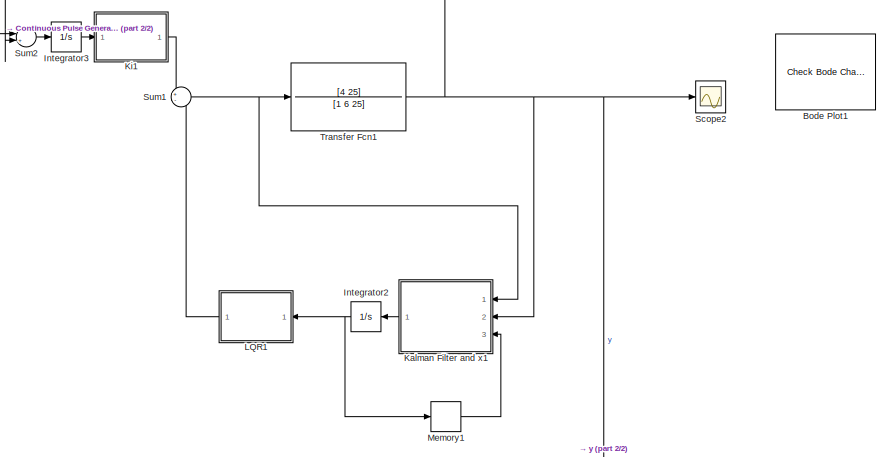
[diagram: root canvas - part 1/2, top center region]
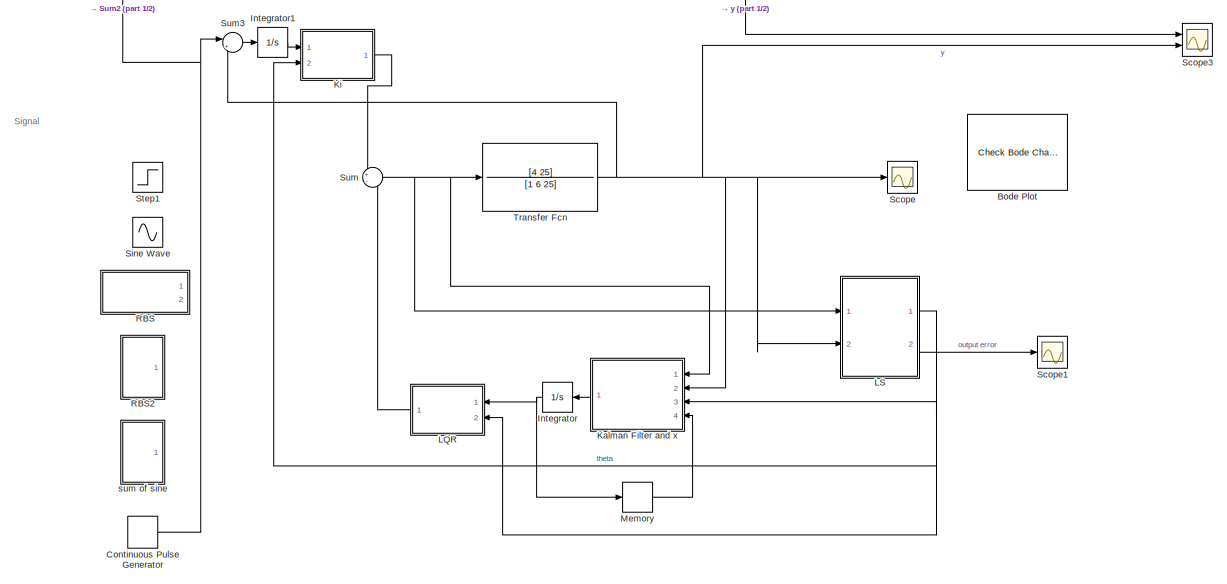
[diagram: root canvas - part 2/2, full width, bottom band]
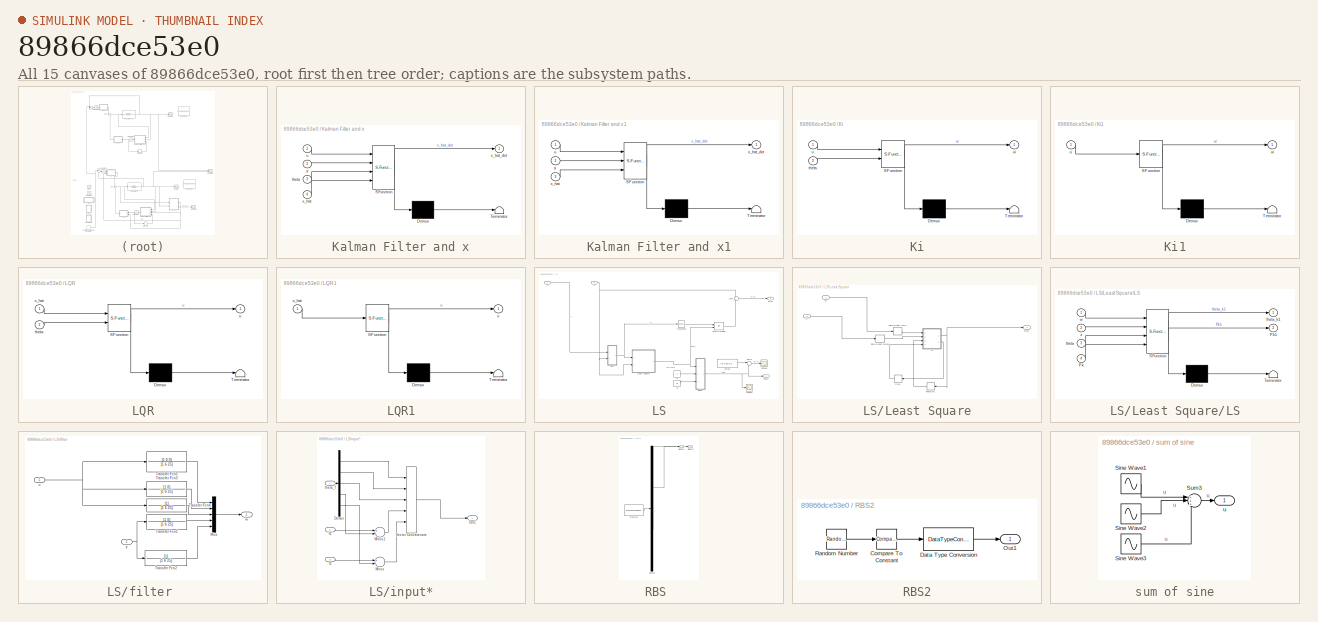
[diagram: thumbnail index - all 15 canvases of the model, root first then tree order]
MODEL slx_89866dce53e0
KIND model
CONFIG AbsTol = auto
CONFIG EnableMultiTasking = off
CONFIG FixedStep = auto
CONFIG MaxStep = auto
CONFIG MinStep = auto
CONFIG RelTol = 1e-3
CONFIG SampleTimeConstraint = Unconstrained
CONFIG Solver = VariableStepAuto
CONFIG SolverName = VariableStepAuto
CONFIG StartTime = 0.0
CONFIG StopTime = 50.0
BLOCK [Reference] Bode Plot  REF=slctrlblks/Model Verification/Check Bode 
Characteristics
  InstantiateOnLoad = on
  Ports = []
  SourceBlock = slctrlblks/Model Verification/Check Bode \nCharacteristics
  SourceProductBaseCode = SD
  SourceProductName = Simulink Control Design
  SourceType = Checks_Bode
BLOCK [Reference] Bode Plot1  REF=slctrlblks/Model Verification/Check Bode 
Characteristics
  InstantiateOnLoad = on
  Ports = []
  SourceBlock = slctrlblks/Model Verification/Check Bode \nCharacteristics
  SourceProductBaseCode = SD
  SourceProductName = Simulink Control Design
  SourceType = Checks_Bode
BLOCK [DiscretePulseGenerator] Continuous Pulse Generator
  Period = 1
  Ports = [0, 1]
  PulseType = Time based
  PulseWidth = 50
BLOCK [Integrator] Integrator
  Ports = [1, 1]
BLOCK [Integrator] Integrator1
  Ports = [1, 1]
BLOCK [Integrator] Integrator2
  Ports = [1, 1]
BLOCK [Integrator] Integrator3
  Ports = [1, 1]
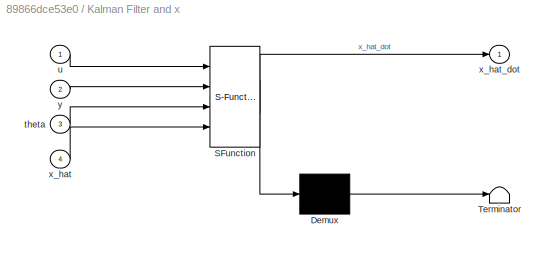
BLOCK [SubSystem] Kalman Filter and x
  ErrorFcn = Stateflow.Translate.translate
  PermitHierarchicalResolution = ExplicitOnly
  Ports = [4, 1]
  RequestExecContextInheritance = off
  SFBlockType = MATLAB Function
  TreatAsAtomicUnit = on
BLOCK [Demux] Kalman Filter and x/ Demux 
  Outputs = 1
  Ports = [1, 1]
BLOCK [S-Function] Kalman Filter and x/ SFunction 
  EnableBusSupport = on
  FunctionName = sf_sfun
  PortCounts = [4 2]
  Ports = [4, 2]
  SFcnIsStateOwnerBlock = off
  SFunctionDeploymentMode = off
  Tag = Stateflow S-Function 1
BLOCK [Terminator] Kalman Filter and x/ Terminator 
BLOCK [Inport] Kalman Filter and x/theta
  IconDisplay = Port number
  Port = 3
BLOCK [Inport] Kalman Filter and x/u
  IconDisplay = Port number
BLOCK [Inport] Kalman Filter and x/x_hat
  IconDisplay = Port number
  Port = 4
BLOCK [Outport] Kalman Filter and x/x_hat_dot
  IconDisplay = Port number
BLOCK [Inport] Kalman Filter and x/y
  IconDisplay = Port number
  Port = 2
BLOCK [SubSystem] Kalman Filter and x1
  ErrorFcn = Stateflow.Translate.translate
  PermitHierarchicalResolution = ExplicitOnly
  Ports = [3, 1]
  RequestExecContextInheritance = off
  SFBlockType = MATLAB Function
  TreatAsAtomicUnit = on
BLOCK [Demux] Kalman Filter and x1/ Demux 
  Outputs = 1
  Ports = [1, 1]
BLOCK [S-Function] Kalman Filter and x1/ SFunction 
  EnableBusSupport = on
  FunctionName = sf_sfun
  PortCounts = [3 2]
  Ports = [3, 2]
  SFcnIsStateOwnerBlock = off
  SFunctionDeploymentMode = off
  Tag = Stateflow S-Function 5
BLOCK [Terminator] Kalman Filter and x1/ Terminator 
BLOCK [Inport] Kalman Filter and x1/u
  IconDisplay = Port number
BLOCK [Inport] Kalman Filter and x1/x_hat
  IconDisplay = Port number
  Port = 3
BLOCK [Outport] Kalman Filter and x1/x_hat_dot
  IconDisplay = Port number
BLOCK [Inport] Kalman Filter and x1/y
  IconDisplay = Port number
  Port = 2
BLOCK [SubSystem] Ki
  ErrorFcn = Stateflow.Translate.translate
  PermitHierarchicalResolution = ExplicitOnly
  Ports = [2, 1]
  RequestExecContextInheritance = off
  SFBlockType = MATLAB Function
  TreatAsAtomicUnit = on
BLOCK [Demux] Ki/ Demux 
  Outputs = 1
  Ports = [1, 1]
BLOCK [S-Function] Ki/ SFunction 
  EnableBusSupport = on
  FunctionName = sf_sfun
  PortCounts = [2 2]
  Ports = [2, 2]
  SFcnIsStateOwnerBlock = off
  SFunctionDeploymentMode = off
  Tag = Stateflow S-Function 4
BLOCK [Terminator] Ki/ Terminator 
BLOCK [Inport] Ki/theta
  IconDisplay = Port number
  Port = 2
BLOCK [Inport] Ki/u
  IconDisplay = Port number
BLOCK [Outport] Ki/ui
  IconDisplay = Port number
BLOCK [SubSystem] Ki1
  ErrorFcn = Stateflow.Translate.translate
  PermitHierarchicalResolution = ExplicitOnly
  Ports = [1, 1]
  RequestExecContextInheritance = off
  SFBlockType = MATLAB Function
  TreatAsAtomicUnit = on
BLOCK [Demux] Ki1/ Demux 
  Outputs = 1
  Ports = [1, 1]
BLOCK [S-Function] Ki1/ SFunction 
  EnableBusSupport = on
  FunctionName = sf_sfun
  PortCounts = [1 2]
  Ports = [1, 2]
  SFcnIsStateOwnerBlock = off
  SFunctionDeploymentMode = off
  Tag = Stateflow S-Function 6
BLOCK [Terminator] Ki1/ Terminator 
BLOCK [Inport] Ki1/u
  IconDisplay = Port number
BLOCK [Outport] Ki1/ui
  IconDisplay = Port number
BLOCK [SubSystem] LQR
  ErrorFcn = Stateflow.Translate.translate
  PermitHierarchicalResolution = ExplicitOnly
  Ports = [2, 1]
  RequestExecContextInheritance = off
  SFBlockType = MATLAB Function
  TreatAsAtomicUnit = on
BLOCK [Demux] LQR/ Demux 
  Outputs = 1
  Ports = [1, 1]
BLOCK [S-Function] LQR/ SFunction 
  EnableBusSupport = on
  FunctionName = sf_sfun
  PortCounts = [2 2]
  Ports = [2, 2]
  SFcnIsStateOwnerBlock = off
  SFunctionDeploymentMode = off
  Tag = Stateflow S-Function 2
BLOCK [Terminator] LQR/ Terminator 
BLOCK [Inport] LQR/theta
  IconDisplay = Port number
  Port = 2
BLOCK [Outport] LQR/u
  IconDisplay = Port number
BLOCK [Inport] LQR/x_hat
  IconDisplay = Port number
BLOCK [SubSystem] LQR1
  ErrorFcn = Stateflow.Translate.translate
  PermitHierarchicalResolution = ExplicitOnly
  Ports = [1, 1]
  RequestExecContextInheritance = off
  SFBlockType = MATLAB Function
  TreatAsAtomicUnit = on
BLOCK [Demux] LQR1/ Demux 
  Outputs = 1
  Ports = [1, 1]
BLOCK [S-Function] LQR1/ SFunction 
  EnableBusSupport = on
  FunctionName = sf_sfun
  PortCounts = [1 2]
  Ports = [1, 2]
  SFcnIsStateOwnerBlock = off
  SFunctionDeploymentMode = off
  Tag = Stateflow S-Function 7
BLOCK [Terminator] LQR1/ Terminator 
BLOCK [Outport] LQR1/u
  IconDisplay = Port number
BLOCK [Inport] LQR1/x_hat
  IconDisplay = Port number
BLOCK [SubSystem] LS
  Ports = [2, 2]
  RequestExecContextInheritance = off
BLOCK [SubSystem] LS/Least Square
  Ports = [2, 1]
  RequestExecContextInheritance = off
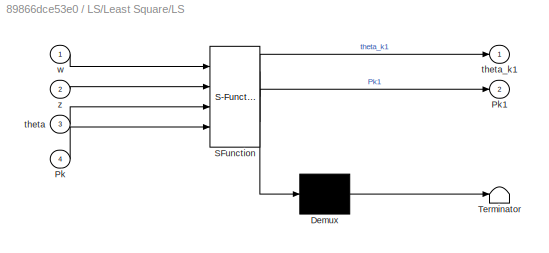
BLOCK [SubSystem] LS/Least Square/LS
  ErrorFcn = Stateflow.Translate.translate
  PermitHierarchicalResolution = ExplicitOnly
  Ports = [4, 2]
  RequestExecContextInheritance = off
  SFBlockType = MATLAB Function
  TreatAsAtomicUnit = on
BLOCK [Demux] LS/Least Square/LS/ Demux 
  Outputs = 1
  Ports = [1, 1]
BLOCK [S-Function] LS/Least Square/LS/ SFunction 
  EnableBusSupport = on
  FunctionName = sf_sfun
  PortCounts = [4 3]
  Ports = [4, 3]
  SFcnIsStateOwnerBlock = off
  SFunctionDeploymentMode = off
  Tag = Stateflow S-Function 3
BLOCK [Terminator] LS/Least Square/LS/ Terminator 
BLOCK [Inport] LS/Least Square/LS/Pk
  IconDisplay = Port number
  Port = 4
BLOCK [Outport] LS/Least Square/LS/Pk1
  IconDisplay = Port number
  Port = 2
BLOCK [Inport] LS/Least Square/LS/theta
  IconDisplay = Port number
  Port = 3
BLOCK [Outport] LS/Least Square/LS/theta_k1
  IconDisplay = Port number
BLOCK [Inport] LS/Least Square/LS/w
  IconDisplay = Port number
BLOCK [Inport] LS/Least Square/LS/z
  IconDisplay = Port number
  Port = 2
BLOCK [Outport] LS/Least Square/Out1
  IconDisplay = Port number
BLOCK [Memory] LS/Least Square/Pk+1
  InheritSampleTime = on
  InitialCondition = (10^5)*eye(5)
BLOCK [Memory] LS/Least Square/Theta k+1
  InheritSampleTime = on
  InitialCondition = [0 4.4 27.5 0.01 0.01]'
BLOCK [ZeroOrderHold] LS/Least Square/Zero-Order Hold
  SampleTime = 0.01
BLOCK [ZeroOrderHold] LS/Least Square/Zero-Order Hold1
  SampleTime = 0.01
BLOCK [Inport] LS/Least Square/w
  IconDisplay = Port number
BLOCK [Inport] LS/Least Square/y
  IconDisplay = Port number
  Port = 2
BLOCK [Product] LS/Matrix Multiply
  InputSameDT = off
  Multiplication = Matrix(*)
  OutDataTypeStr = Inherit: Inherit via internal rule
  Ports = [2, 1]
  RndMeth = Floor
  SaturateOnIntegerOverflow = off
BLOCK [Scope] LS/Scope1
  Floating = off
  NumInputPorts = 1
  Ports = [1]
  ScopeSpecificationString = Simulink.scopes.TimeScopeBlockCfg('CurrentConfiguration', extmgr.ConfigurationSet(extmgr.Configuration('Core','General UI',true),extmgr.Configuration('Core','Source UI',true),extmgr.Configuration('Sources','WiredSimulink',true,'DataLoggingVariableName','ScopeData2'),extmgr.Configuration('Visuals','Time Domain',true,'SerializedDisplays',{struct('MinYLimReal','-0.25936','MaxYLimReal','2.65944','YLab...<+1474ch>
BLOCK [Scope] LS/Scope2
  Floating = off
  NumInputPorts = 1
  Ports = [1]
  ScopeSpecificationString = Simulink.scopes.TimeScopeBlockCfg('CurrentConfiguration', extmgr.ConfigurationSet(extmgr.Configuration('Core','General UI',true),extmgr.Configuration('Core','Source UI',true),extmgr.Configuration('Sources','WiredSimulink',true,'DataLoggingVariableName','ScopeData3'),extmgr.Configuration('Visuals','Time Domain',true,'SerializedDisplays',{struct('MinYLimReal','-3.25','MaxYLimReal','29.25','YLabelRea...<+1434ch>
BLOCK [Sum] LS/Sum
  IconShape = round
  InputSameDT = off
  Inputs = -+
  OutDataTypeStr = Inherit: Inherit via internal rule
  Ports = [2, 1]
  SaturateOnIntegerOverflow = off
BLOCK [Sum] LS/Sum2
  IconShape = round
  InputSameDT = off
  Inputs = |-+
  OutDataTypeStr = Inherit: Inherit via internal rule
  Ports = [2, 1]
  SaturateOnIntegerOverflow = off
BLOCK [Math] LS/Transpose
  Operator = transpose
  Ports = [1, 1]
  SignedPower = off
BLOCK [Constant] LS/actual
  Value = [0 4 25 6 25]'
BLOCK [Outport] LS/error
  IconDisplay = Port number
  Port = 2
BLOCK [Constant] LS/f1
  Value = 6
BLOCK [Constant] LS/f2
  Value = 25
BLOCK [SubSystem] LS/filter 
  Ports = [2, 1]
  RequestExecContextInheritance = off
BLOCK [Mux] LS/filter /Mux
  DisplayOption = bar
  Inputs = 5
  Ports = [5, 1]
BLOCK [TransferFcn] LS/filter /Transfer Fcn1
  Denominator = [1 6 25]
  Numerator = [1 0]
BLOCK [TransferFcn] LS/filter /Transfer Fcn2
  Denominator = [1 6 25]
BLOCK [TransferFcn] LS/filter /Transfer Fcn3
  Denominator = [1 6 25]
  Numerator = [1 0]
BLOCK [TransferFcn] LS/filter /Transfer Fcn4
  Denominator = [1 6 25]
BLOCK [TransferFcn] LS/filter /Transfer Fcn5
  Denominator = [1 6 25]
  Numerator = [1 0 0]
BLOCK [Inport] LS/filter /u 
  IconDisplay = Port number
BLOCK [Outport] LS/filter /w
  IconDisplay = Port number
BLOCK [Inport] LS/filter /y 
  IconDisplay = Port number
  Port = 2
BLOCK [SubSystem] LS/input*
  Ports = [3, 1]
  RequestExecContextInheritance = off
BLOCK [Demux] LS/input*/Demux
  DisplayOption = bar
  Outputs = 5
  Ports = [1, 5]
BLOCK [Sum] LS/input*/Minus
  InputSameDT = off
  Inputs = +-
  OutDataTypeStr = Inherit: Inherit via internal rule
  Ports = [2, 1]
  SaturateOnIntegerOverflow = off
BLOCK [Sum] LS/input*/Minus1
  InputSameDT = off
  Inputs = +-
  OutDataTypeStr = Inherit: Inherit via internal rule
  Ports = [2, 1]
  SaturateOnIntegerOverflow = off
BLOCK [Outport] LS/input*/Out1
  IconDisplay = Port number
BLOCK [Concatenate] LS/input*/Vector Concatenate
  NumInputs = 5
  Ports = [5, 1]
BLOCK [Inport] LS/input*/f1
  IconDisplay = Port number
  Port = 2
BLOCK [Inport] LS/input*/f2
  IconDisplay = Port number
  Port = 3
BLOCK [Inport] LS/input*/theta_f
  IconDisplay = Port number
BLOCK [Outport] LS/theta
  IconDisplay = Port number
BLOCK [Inport] LS/u
  IconDisplay = Port number
BLOCK [Inport] LS/y
  IconDisplay = Port number
  Port = 2
BLOCK [Memory] Memory
  InitialCondition = [0 0]'
BLOCK [Memory] Memory1
  InheritSampleTime = on
  InitialCondition = [0 0]'
BLOCK [SubSystem] RBS 
  ClipboardFcn = sigbuilder_block('clipboard');
  CloseFcn = sigbuilder_block('close');
  ContinueFcn = sigbuilder_block('continue');
  CopyFcn = sigbuilder_block('copy');
  DeleteFcn = sigbuilder_block('delete');
  LoadFcn = sigbuilder_block('load');
  MaskHideContents = on
  ModelCloseFcn = sigbuilder_block('modelClose');
  NameChangeFcn = sigbuilder_block('namechange');
  OpenFcn = sigbuilder_block('open',[215 62.5 550.5 362.5 ]);
  PauseFcn = sigbuilder_block('pause');
  Ports = [0, 2]
  PreSaveFcn = sigbuilder_block('preSave');
  RequestExecContextInheritance = off
  StartFcn = sigbuilder_block('start');
  StopFcn = sigbuilder_block('stop');
  Tag = STV Subsys
BLOCK [Demux] RBS /Demux
  Outputs = 2
  Ports = [1, 2]
  Tag = STV Demux
BLOCK [FromWorkspace] RBS /FromWs
  SampleTime = 0
  Tag = STV FromWs
  VariableName = tuvar
  ZeroCross = on
BLOCK [Outport] RBS /Signal 1
  IconDisplay = Port number
  Tag = STV Outport
BLOCK [Outport] RBS /Signal 2
  IconDisplay = Port number
  Port = 2
  Tag = STV Outport
BLOCK [SubSystem] RBS2
  Ports = [0, 1]
  RequestExecContextInheritance = off
BLOCK [Reference] RBS2/Compare To Constant  REF=simulink/Logic and Bit
Operations/Compare
To Constant
  Ports = [1, 1]
  SourceBlock = simulink/Logic and Bit\nOperations/Compare\nTo Constant
  SourceProductBaseCode = SL
  SourceProductName = Simulink
  SourceType = Compare To Constant
BLOCK [DataTypeConversion] RBS2/Data Type Conversion
  OutDataTypeStr = double
  RndMeth = Floor
  SaturateOnIntegerOverflow = off
BLOCK [Outport] RBS2/Out1
  IconDisplay = Port number
BLOCK [RandomNumber] RBS2/Random Number
  Mean = 1
  SampleTime = 10
BLOCK [Scope] Scope
  Floating = off
  NumInputPorts = 1
  Ports = [1]
  ScopeSpecificationString = Simulink.scopes.TimeScopeBlockCfg('CurrentConfiguration', extmgr.ConfigurationSet(extmgr.Configuration('Core','General UI',true),extmgr.Configuration('Core','Source UI',true),extmgr.Configuration('Sources','WiredSimulink',true,'DataLoggingVariableName','ScopeData1'),extmgr.Configuration('Visuals','Time Domain',true,'SerializedDisplays',{struct('MinYLimReal','-0.05891','MaxYLimReal','1.05733','YLab...<+1449ch>
BLOCK [Scope] Scope1
  Floating = off
  NumInputPorts = 1
  Ports = [1]
  ScopeSpecificationString = Simulink.scopes.TimeScopeBlockCfg('CurrentConfiguration', extmgr.ConfigurationSet(extmgr.Configuration('Core','General UI',true),extmgr.Configuration('Core','Source UI',true),extmgr.Configuration('Sources','WiredSimulink',true,'DataLoggingVariableName','ScopeData2'),extmgr.Configuration('Visuals','Time Domain',true,'SerializedDisplays',{struct('MinYLimReal','-1.00000','MaxYLimReal','1.00000','YLab...<+1416ch>
BLOCK [Scope] Scope2
  Floating = off
  NumInputPorts = 1
  Ports = [1]
  ScopeSpecificationString = Simulink.scopes.TimeScopeBlockCfg('CurrentConfiguration', extmgr.ConfigurationSet(extmgr.Configuration('Core','General UI',true),extmgr.Configuration('Core','Source UI',true),extmgr.Configuration('Sources','WiredSimulink',true,'DataLoggingVariableName','ScopeData1'),extmgr.Configuration('Visuals','Time Domain',true,'SerializedDisplays',{struct('MinYLimReal','-0.06022','MaxYLimReal','1.05725','YLab...<+1449ch>
BLOCK [Scope] Scope3
  Floating = off
  NumInputPorts = 2
  Ports = [2]
  ScopeSpecificationString = Simulink.scopes.TimeScopeBlockCfg('CurrentConfiguration', extmgr.ConfigurationSet(extmgr.Configuration('Core','General UI',true),extmgr.Configuration('Core','Source UI',true),extmgr.Configuration('Sources','WiredSimulink',true,'DataLoggingVariableName','ScopeData2'),extmgr.Configuration('Visuals','Time Domain',true,'SerializedDisplays',{struct('MinYLimReal','-0.0651','MaxYLimReal','1.06009','YLabe...<+1458ch>
BLOCK [Sin] Sine Wave
  Frequency = 0.1
  Ports = [0, 1]
  SampleTime = 0
BLOCK [Step] Step1
  SampleTime = 0
BLOCK [Sum] Sum
  IconShape = round
  InputSameDT = off
  Inputs = +-
  OutDataTypeStr = Inherit: Inherit via internal rule
  Ports = [2, 1]
  SaturateOnIntegerOverflow = off
BLOCK [Sum] Sum1
  IconShape = round
  InputSameDT = off
  Inputs = +-
  OutDataTypeStr = Inherit: Inherit via internal rule
  Ports = [2, 1]
  SaturateOnIntegerOverflow = off
BLOCK [Sum] Sum2
  IconShape = round
  InputSameDT = off
  Inputs = |+-
  OutDataTypeStr = Inherit: Inherit via internal rule
  Ports = [2, 1]
  SaturateOnIntegerOverflow = off
BLOCK [Sum] Sum3
  IconShape = round
  InputSameDT = off
  Inputs = |+-
  OutDataTypeStr = Inherit: Inherit via internal rule
  Ports = [2, 1]
  SaturateOnIntegerOverflow = off
BLOCK [TransferFcn] Transfer Fcn
  Denominator = [1 6 25]
  Numerator = [4 25]
BLOCK [TransferFcn] Transfer Fcn1
  Denominator = [1 6 25]
  Numerator = [4 25]
BLOCK [SubSystem] sum of sine
  Ports = [0, 1]
  RequestExecContextInheritance = off
BLOCK [Sin] sum of sine/Sine Wave1
  Frequency = 0.1
  Phase = 0.1
  Ports = [0, 1]
  SampleTime = 0
BLOCK [Sin] sum of sine/Sine Wave2
  Ports = [0, 1]
  SampleTime = 0
BLOCK [Sin] sum of sine/Sine Wave3
  Frequency = 2
  Ports = [0, 1]
  SampleTime = 0
BLOCK [Sum] sum of sine/Sum3
  IconShape = round
  InputSameDT = off
  Inputs = +++
  OutDataTypeStr = Inherit: Inherit via internal rule
  Ports = [3, 1]
  SaturateOnIntegerOverflow = off
BLOCK [Outport] sum of sine/u
  IconDisplay = Port number
ANNOTATION (root): Signal
ANNOTATION LS: Hard input
NET Continuous Pulse Generator:1 -> Sum2:1, Sum3:1
LINE Integrator1:1 -> Ki:1
NET Integrator2:1 -> LQR1:1, Memory1:1
LINE Integrator3:1 -> Ki1:1
NET Integrator:1 -> LQR:1, Memory:1
LINE Kalman Filter and x1:1 -> Integrator2:1
LINE Kalman Filter and x:1 -> Integrator:1
LINE Ki1:1 -> Sum1:1
LINE Ki:1 -> Sum:1
LINE LQR1:1 -> Sum1:2
LINE LQR:1 -> Sum:2
NET LS/Least Square/LS:1 -> LS/Least Square/Out1:1, LS/Least Square/Theta k+1:1
LINE LS/Least Square/LS:2 -> LS/Least Square/Pk+1:1
LINE LS/Least Square/Pk+1:1 -> LS/Least Square/LS:4
LINE LS/Least Square/Theta k+1:1 -> LS/Least Square/LS:3
LINE LS/Least Square/Zero-Order Hold1:1 -> LS/Least Square/LS:2
LINE LS/Least Square/Zero-Order Hold:1 -> LS/Least Square/LS:1
LINE LS/Least Square/w:1 -> LS/Least Square/Zero-Order Hold:1
LINE LS/Least Square/y:1 -> LS/Least Square/Zero-Order Hold1:1
NET LS/Least Square:1 -> LS/Matrix Multiply:2, LS/input*:1
LINE LS/Matrix Multiply:1 -> LS/Sum:2
LINE LS/Sum2:1 -> LS/Scope1:1
LINE LS/Sum:1 -> LS/error:1
LINE LS/Transpose:1 -> LS/Matrix Multiply:1
LINE LS/actual:1 -> LS/Sum2:1
LINE LS/f1:1 -> LS/input*:2
LINE LS/f2:1 -> LS/input*:3
LINE LS/filter /Mux:1 -> LS/filter /w:1
LINE LS/filter /Transfer Fcn1:1 -> LS/filter /Mux:4
LINE LS/filter /Transfer Fcn2:1 -> LS/filter /Mux:5
LINE LS/filter /Transfer Fcn3:1 -> LS/filter /Mux:2
LINE LS/filter /Transfer Fcn4:1 -> LS/filter /Mux:3
LINE LS/filter /Transfer Fcn5:1 -> LS/filter /Mux:1
NET LS/filter /u :1 -> LS/filter /Transfer Fcn3:1, LS/filter /Transfer Fcn4:1, LS/filter /Transfer Fcn5:1
NET LS/filter /y :1 -> LS/filter /Transfer Fcn1:1, LS/filter /Transfer Fcn2:1
NET LS/filter :1 -> LS/Least Square:1, LS/Transpose:1
LINE LS/input*/Demux:1 -> LS/input*/Vector Concatenate:1
LINE LS/input*/Demux:2 -> LS/input*/Vector Concatenate:2
LINE LS/input*/Demux:3 -> LS/input*/Vector Concatenate:3
LINE LS/input*/Demux:4 -> LS/input*/Minus1:2
LINE LS/input*/Demux:5 -> LS/input*/Minus:2
LINE LS/input*/Minus1:1 -> LS/input*/Vector Concatenate:4
LINE LS/input*/Minus:1 -> LS/input*/Vector Concatenate:5
LINE LS/input*/Vector Concatenate:1 -> LS/input*/Out1:1
LINE LS/input*/f1:1 -> LS/input*/Minus1:1
LINE LS/input*/f2:1 -> LS/input*/Minus:1
LINE LS/input*/theta_f:1 -> LS/input*/Demux:1
NET LS/input*:1 -> LS/Scope2:1, LS/Sum2:2, LS/theta:1
LINE LS/u:1 -> LS/filter :1
NET LS/y:1 -> LS/Least Square:2, LS/Sum:1, LS/filter :2
NET LS:1 -> Kalman Filter and x:3, Ki:2, LQR:2
LINE LS:2 -> Scope1:1
LINE Memory1:1 -> Kalman Filter and x1:3
LINE Memory:1 -> Kalman Filter and x:4
LINE RBS2/Compare To Constant:1 -> RBS2/Data Type Conversion:1
LINE RBS2/Data Type Conversion:1 -> RBS2/Out1:1
LINE RBS2/Random Number:1 -> RBS2/Compare To Constant:1
NET Sum1:1 -> Kalman Filter and x1:1, Transfer Fcn1:1
LINE Sum2:1 -> Integrator3:1
LINE Sum3:1 -> Integrator1:1
NET Sum:1 -> Kalman Filter and x:1, LS:1, Transfer Fcn:1
NET Transfer Fcn1:1 -> Kalman Filter and x1:2, Scope2:1, Scope3:1, Sum2:2
NET Transfer Fcn:1 -> Kalman Filter and x:2, LS:2, Scope3:2, Scope:1, Sum3:2
LINE sum of sine/Sine Wave1:1 -> sum of sine/Sum3:1
LINE sum of sine/Sine Wave2:1 -> sum of sine/Sum3:2
LINE sum of sine/Sine Wave3:1 -> sum of sine/Sum3:3
LINE sum of sine/Sum3:1 -> sum of sine/u:1
note: NET lines group one-source signal fan-out (src -> all destinations, sorted); 1:1 wires keep LINE
CHART Kalman Filter and x states=1 transitions=1
  STATE_LABEL 'eML_blk_kernel()'
  STATE_LABEL 'SCRIPT:\nfunction x_hat_dot = fcn(u, y, theta, x_hat)\ncoder.extrinsic("kalman","ss");\nx_hat_dot = [0 0]\';\nL = [0 0]\';\nA = [0 1; -theta(5) -theta(4)];\nB = [0 1]\';\nC = [theta(3) theta(2)];\nsys = ss(A,B,C,0);\nQ = 10;\nR = 10;\n[kalmf,L,P,M] = kalman(sys,Q,R);\n\nx_hat_dot = A*x_hat + B*u + L*(y - C*x_hat);\n\n'
CHART LQR states=1 transitions=1
  STATE_LABEL 'eML_blk_kernel()'
  STATE_LABEL 'SCRIPT:\nfunction u = fcn(x_hat,theta)\nu = 0;\ncoder.extrinsic("lqr");\n\nA = [0 1; -theta(5) -theta(4)];\nB = [0 1]\';\nC = [theta(3) theta(2)];\n\n%servomechanism\no = [0 0]\';\nA1 = [A o; C 0];\nB1 = [B;0];\n\nQ = [100 0 0; 0 100 0; 0 0 1000];\nR = 0.001;\n\nK1 = lqr(A1,B1,Q,R);\nK = [K1(1) K1(2)];\nu=K*x_hat;\n'
CHART LS/Least Square/LS states=1 transitions=1
  STATE_LABEL 'eML_blk_kernel()'
  STATE_LABEL "SCRIPT:\nfunction [ theta_k1,Pk1] = fcn(w, z, theta, Pk)\nalpha = 1; %standard\ngamma = 1/alpha;\n%e = 10^-4;\n%Q = e*eye(5);\n%Pk = eye(5);\n\n%initial values\n%ro = 10^5;\n%P1 = ro*eye(5);\n%theta1 = [0 0 1 0.2 0.01]';\n%Calculations\n\ntheta_k1 = theta - (gamma*Pk*w*(w'*theta-z))/ (1+gamma*w'*Pk*w);\nPk1 = (1/alpha)*Pk - ((gamma^2*Pk*w*w'*Pk)/(1+gamma*w'*Pk*w));\n"
CHART Ki states=1 transitions=1
  STATE_LABEL 'eML_blk_kernel()'
  STATE_LABEL 'SCRIPT:\nfunction ui = fcn(u , theta)\n coder.extrinsic("ss","place","matsplit",\'ctrb\',\'lqr\');\n% [b2, b1, b0, a1, a0] = matsplit(theta);\nui = 0;\nA = [0 1; -theta(5) -theta(4)];\nB = [0 1]\';\nC = [theta(3) theta(2)];\n% D = 0;\n\n%servomechanism\no = [0 0]\';\nA1 = [A o; C 0];\nB1 = [B;0];\nQ = [100 0 0; 0 100 0; 0 0 1000];\nR = 0.001;\nK1 = lqr(A1,B1,Q,R);\nKi = [K1(3)];\nui = Ki*u;\n'
CHART Kalman Filter and x1 states=1 transitions=1
  STATE_LABEL 'eML_blk_kernel()'
  STATE_LABEL 'SCRIPT:\nfunction x_hat_dot = fcn(u, y, x_hat)\ncoder.extrinsic("kalman","ss");\nx_hat_dot = [0 0]\';\nL = [0 0]\';\n% A = [0 1; -theta(5) -theta(4)];\n% B = [0 1]\';\n% C = [theta(3) theta(2)];\n% sys = ss(A,B,C,0);\n\n%hard coded system params\nA = [0 1; -25 -6];\nB = [0 1]\';\nC = [25 4]; \nsys = ss(A,B,C,0);\n\nQ = 10;\nR = 10;\n[kalmf,L,P,M] = kalman(sys,Q,R);\n\nx_hat_dot = A*x_hat + B*u + L*(y - C*x_hat);\n\n'
CHART Ki1 states=1 transitions=1
  STATE_LABEL 'eML_blk_kernel()'
  STATE_LABEL 'SCRIPT:\nfunction ui = fcn(u)\n coder.extrinsic("ss","place","matsplit",\'ctrb\',\'lqr\');\n% [b2, b1, b0, a1, a0] = matsplit(theta);\nui = 0;\nA = [0 1; -25 -6];\nB = [0 1]\';\nC = [25 4]; \n\no = [0 0]\';\nA1 = [A o;C 0];\nB1 = [B;0];\nQ = [100 0 0; 0 100 0; 0 0 1000];\nR = 0.001;\n\nK1 = lqr(A1,B1,Q,R);\nKi = [K1(3)];\nui = Ki*u;\n'
CHART LQR1 states=1 transitions=1
  STATE_LABEL 'eML_blk_kernel()'
  STATE_LABEL 'SCRIPT:\nfunction u = fcn(x_hat)\nu = 0;\ncoder.extrinsic("lqr");\n\nA = [0 1; -25 -6];\nB = [0 1]\';\nC = [25 4]; \n\n%servomechanism\no = [0 0]\';\nA1 = [A o;C 0];\nB1 = [B;0];\nQ = [100 0 0; 0 100 0; 0 0 1000];\nR = 0.001;\nK1 = lqr(A1,B1,Q,R);\nK = [K1(1) K1(2)];\nu=K*x_hat;\n'
